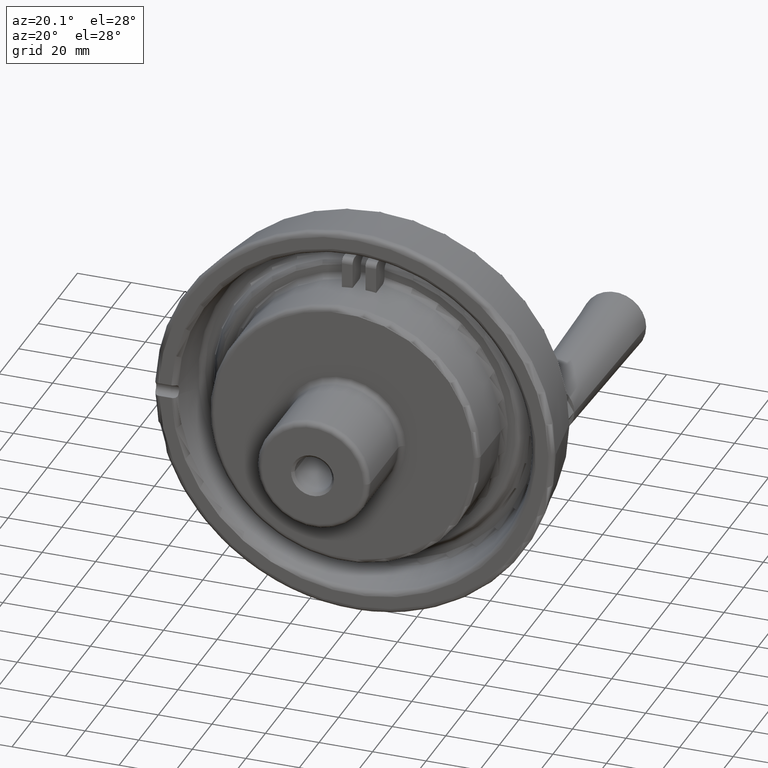
[diagram: clean part render]
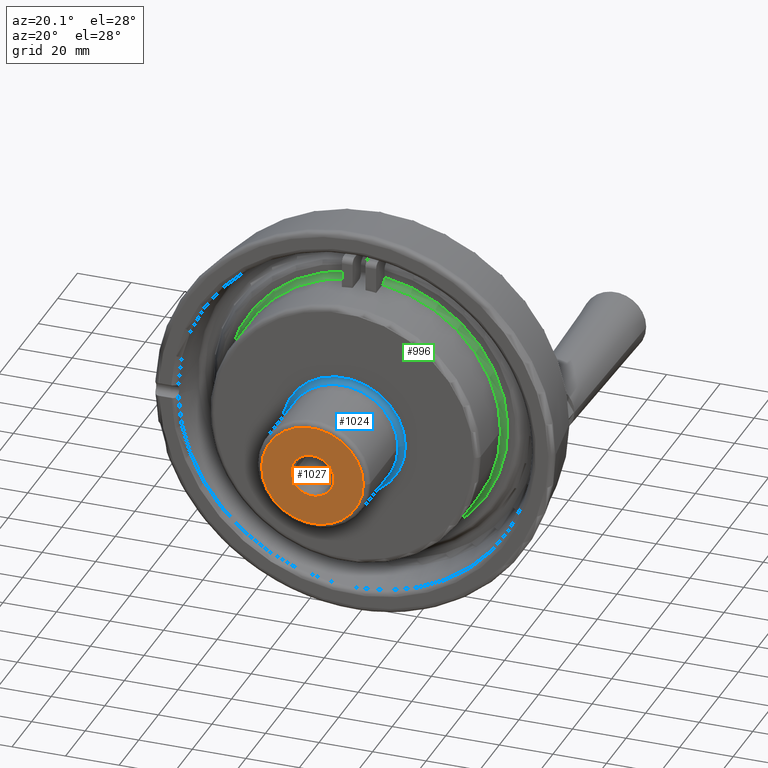
[diagram: same view with three faces highlighted in distinct colors, each labeled with its STEP entity id]
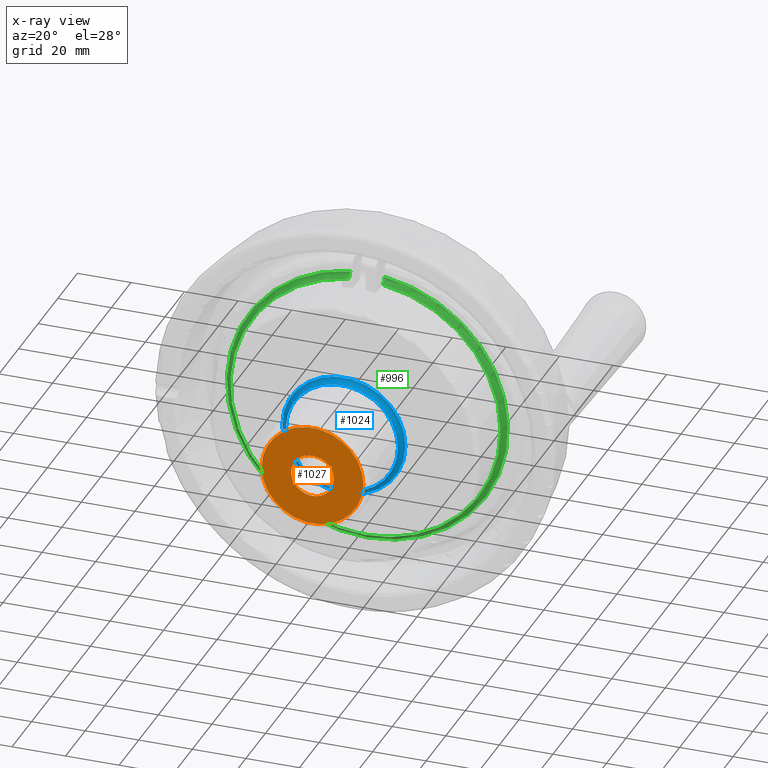
[diagram: x-ray of the same camera — body ghosted, the three highlighted faces saturated]
A machine part, auxiliary view with three faces highlighted in distinct colors.
The next image is the same camera in x-ray (body ghosted, the three faces saturated) — at least one of them is partly hidden behind the body in this view.
Their STEP definitions:

[orange] entity #1027 — the highlighted planar face has unit normal (0, -1, 0).
#183=PLANE('',#1132);
#215=FACE_BOUND('',#358,.T.);
#274=FACE_OUTER_BOUND('',#357,.T.);
#357=EDGE_LOOP('',(#884));
#358=EDGE_LOOP('',(#885));
#430=CIRCLE('',#1131,19.);
#431=CIRCLE('',#1133,8.);
#529=VERTEX_POINT('',#1941);
#530=VERTEX_POINT('',#1944);
#658=EDGE_CURVE('',#529,#529,#430,.T.);
#659=EDGE_CURVE('',#530,#530,#431,.T.);
#884=ORIENTED_EDGE('',*,*,#658,.F.);
#885=ORIENTED_EDGE('',*,*,#659,.F.);
#1027=ADVANCED_FACE('',(#274,#215),#183,.T.);
#1131=AXIS2_PLACEMENT_3D('',#1942,#1385,#1386);
#1132=AXIS2_PLACEMENT_3D('',#1943,#1387,#1388);
#1133=AXIS2_PLACEMENT_3D('',#1945,#1389,#1390);
#1385=DIRECTION('center_axis',(-1.23614811126766E-16,1.,0.));
#1386=DIRECTION('ref_axis',(-1.,-1.23614811126766E-16,1.22464679914735E-16));
#1387=DIRECTION('center_axis',(1.23614811126766E-16,-1.,0.));
#1388=DIRECTION('ref_axis',(0.,0.,-1.));
#1389=DIRECTION('center_axis',(1.23614811126766E-16,-1.,0.));
#1390=DIRECTION('ref_axis',(1.,1.23614811126766E-16,0.));
#1941=CARTESIAN_POINT('',(19.,-32.,-4.65365783675994E-15));
#1942=CARTESIAN_POINT('Origin',(3.95575584091138E-15,-32.,0.));
#1943=CARTESIAN_POINT('Origin',(16.,-32.,0.));
#1944=CARTESIAN_POINT('',(-8.,-32.,-9.79717439317883E-16));
#1945=CARTESIAN_POINT('Origin',(4.1867299482124E-15,-32.,0.));

[blue] entity #1024 — the highlighted toroidal blend (fillet) surface has major radius 23 mm and minor (blend) radius 2 mm.
#212=FACE_BOUND('',#352,.T.);
#271=FACE_OUTER_BOUND('',#351,.T.);
#351=EDGE_LOOP('',(#878));
#352=EDGE_LOOP('',(#879));
#427=CIRCLE('',#1125,23.);
#428=CIRCLE('',#1127,21.);
#526=VERTEX_POINT('',#1932);
#527=VERTEX_POINT('',#1935);
#655=EDGE_CURVE('',#526,#526,#427,.T.);
#656=EDGE_CURVE('',#527,#527,#428,.T.);
#878=ORIENTED_EDGE('',*,*,#655,.T.);
#879=ORIENTED_EDGE('',*,*,#656,.T.);
#974=TOROIDAL_SURFACE('',#1126,23.,2.);
#1024=ADVANCED_FACE('',(#271,#212),#974,.F.);
#1125=AXIS2_PLACEMENT_3D('',#1933,#1373,#1374);
#1126=AXIS2_PLACEMENT_3D('',#1934,#1375,#1376);
#1127=AXIS2_PLACEMENT_3D('',#1936,#1377,#1378);
#1373=DIRECTION('center_axis',(1.23614811126766E-16,-1.,0.));
#1374=DIRECTION('ref_axis',(-1.,-1.23614811126766E-16,1.22464679914735E-16));
#1375=DIRECTION('center_axis',(1.23614811126766E-16,-1.,0.));
#1376=DIRECTION('ref_axis',(0.,0.,-1.));
#1377=DIRECTION('center_axis',(-1.23614811126766E-16,1.,0.));
#1378=DIRECTION('ref_axis',(-1.,-1.18952466924124E-16,1.22464679914735E-16));
#1932=CARTESIAN_POINT('',(23.,2.56558489975933E-15,0.));
#1933=CARTESIAN_POINT('Origin',(8.18848548585905E-20,-2.77555756156289E-16,
0.));
#1934=CARTESIAN_POINT('Origin',(2.47311507108391E-16,-2.,0.));
#1935=CARTESIAN_POINT('',(21.,-2.,-5.14351655641888E-15));
#1936=CARTESIAN_POINT('Origin',(2.47311507108391E-16,-2.,0.));

[green] entity #996 — the highlighted toroidal blend (fillet) surface has major radius 52.5 mm and minor (blend) radius 2 mm.
#20=B_SPLINE_CURVE_WITH_KNOTS('',3,(#1498,#1499,#1500,#1501,#1502,#1503,
#1504,#1505,#1506,#1507),.UNSPECIFIED.,.F.,.F.,(4,2,2,2,4),(0.297271068973057,
0.372064424647454,0.446587010712527,0.520754062414803,0.594615246630855),
 .UNSPECIFIED.);
#31=B_SPLINE_CURVE_WITH_KNOTS('',3,(#1666,#1667,#1668,#1669,#1670,#1671,
#1672,#1673,#1674,#1675),.UNSPECIFIED.,.F.,.F.,(4,2,2,2,4),(0.594615299020543,
0.668476483236595,0.742643534938872,0.817166121003945,0.891959476678342),
 .UNSPECIFIED.);
#243=FACE_OUTER_BOUND('',#312,.T.);
#312=EDGE_LOOP('',(#758,#759,#760,#761));
#404=CIRCLE('',#1075,50.5);
#405=CIRCLE('',#1076,52.5);
#459=VERTEX_POINT('',#1495);
#460=VERTEX_POINT('',#1497);
#492=VERTEX_POINT('',#1663);
#493=VERTEX_POINT('',#1665);
#560=EDGE_CURVE('',#460,#459,#20,.T.);
#600=EDGE_CURVE('',#493,#492,#31,.T.);
#602=EDGE_CURVE('',#459,#493,#404,.T.);
#603=EDGE_CURVE('',#492,#460,#405,.T.);
#758=ORIENTED_EDGE('',*,*,#560,.T.);
#759=ORIENTED_EDGE('',*,*,#602,.T.);
#760=ORIENTED_EDGE('',*,*,#600,.T.);
#761=ORIENTED_EDGE('',*,*,#603,.T.);
#966=TOROIDAL_SURFACE('',#1074,52.5,2.);
#996=ADVANCED_FACE('',(#243),#966,.F.);
#1074=AXIS2_PLACEMENT_3D('',#1677,#1249,#1250);
#1075=AXIS2_PLACEMENT_3D('',#1678,#1251,#1252);
#1076=AXIS2_PLACEMENT_3D('',#1679,#1253,#1254);
#1249=DIRECTION('center_axis',(1.23614811126766E-16,-1.,0.));
#1250=DIRECTION('ref_axis',(0.,0.,-1.));
#1251=DIRECTION('center_axis',(-1.23614811126766E-16,1.,0.));
#1252=DIRECTION('ref_axis',(-1.,-1.20915378919571E-16,1.22464679914735E-16));
#1253=DIRECTION('center_axis',(1.23614811126766E-16,-1.,0.));
#1254=DIRECTION('ref_axis',(-1.,-1.23614811126766E-16,1.22464679914735E-16));
#1495=CARTESIAN_POINT('',(6.4,22.,50.0928138558816));
#1497=CARTESIAN_POINT('',(6.4,24.,52.1084446131335));
#1498=CARTESIAN_POINT('Ctrl Pts',(6.4,24.,52.1084446131335));
#1499=CARTESIAN_POINT('Ctrl Pts',(6.4,24.,51.8591334275522));
#1500=CARTESIAN_POINT('Ctrl Pts',(6.4,23.9419397815861,51.5656479119192));
#1501=CARTESIAN_POINT('Ctrl Pts',(6.4,23.7522104181848,51.1055090483713));
#1502=CARTESIAN_POINT('Ctrl Pts',(6.4,23.5872748489742,50.8572065889586));
#1503=CARTESIAN_POINT('Ctrl Pts',(6.4,23.2376614828414,50.5058923443902));
#1504=CARTESIAN_POINT('Ctrl Pts',(6.4,22.9914544692296,50.340380618583));
#1505=CARTESIAN_POINT('Ctrl Pts',(6.4,22.5359046095539,50.1507890133263));
#1506=CARTESIAN_POINT('Ctrl Pts',(6.4,22.2462039473868,50.0928138558816));
#1507=CARTESIAN_POINT('Ctrl Pts',(6.4,22.,50.0928138558816));
#1663=CARTESIAN_POINT('',(-6.4,24.,52.1084446131335));
#1665=CARTESIAN_POINT('',(-6.4,22.,50.0928138558816));
#1666=CARTESIAN_POINT('Ctrl Pts',(-6.4,22.,50.0928138558816));
#1667=CARTESIAN_POINT('Ctrl Pts',(-6.4,22.2462039473868,50.0928138558816));
#1668=CARTESIAN_POINT('Ctrl Pts',(-6.4,22.5359046095539,50.1507890133263));
#1669=CARTESIAN_POINT('Ctrl Pts',(-6.4,22.9914544692296,50.340380618583));
#1670=CARTESIAN_POINT('Ctrl Pts',(-6.4,23.2376614828414,50.5058923443902));
#1671=CARTESIAN_POINT('Ctrl Pts',(-6.4,23.5872748489742,50.8572065889586));
#1672=CARTESIAN_POINT('Ctrl Pts',(-6.4,23.7522104181848,51.1055090483714));
#1673=CARTESIAN_POINT('Ctrl Pts',(-6.4,23.9419397815861,51.5656479119193));
#1674=CARTESIAN_POINT('Ctrl Pts',(-6.4,24.,51.8591334275522));
#1675=CARTESIAN_POINT('Ctrl Pts',(-6.4,24.,52.1084446131335));
#1677=CARTESIAN_POINT('Origin',(-2.719443959934E-15,22.,0.));
#1678=CARTESIAN_POINT('Origin',(-2.719443959934E-15,22.,0.));
#1679=CARTESIAN_POINT('Origin',(-2.96667358218753E-15,24.,0.));